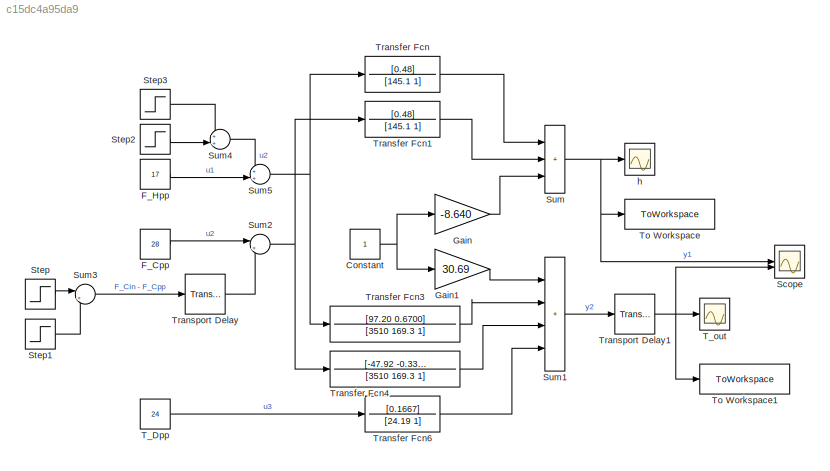
MODEL slx_c15dc4a95da9
KIND model
CONFIG AbsTol = auto
CONFIG EnableMultiTasking = off
CONFIG FixedStep = 0.1
CONFIG MaxStep = auto
CONFIG MinStep = auto
CONFIG RelTol = 1e-3
CONFIG SampleTimeConstraint = Unconstrained
CONFIG SolverName = ode4
CONFIG StartTime = 0.0
CONFIG StopTime = 5000.0
BLOCK [Constant] Constant
BLOCK [Constant] F_Cpp
  Value = 28
BLOCK [Constant] F_Hpp
  Value = 17
BLOCK [Gain] Gain
  Gain = -8.640
BLOCK [Gain] Gain1
  Gain = 30.69
BLOCK [Scope] Scope
  Floating = off
  NumInputPorts = 2
  ScopeSpecificationString = Simulink.scopes.TimeScopeBlockCfg('CurrentConfiguration', extmgr.ConfigurationSet(extmgr.Configuration('Core','General UI',true),extmgr.Configuration('Core','Source UI',true),extmgr.Configuration('Sources','WiredSimulink',true,'DataLoggingVariableName','ScopeData2'),extmgr.Configuration('Visuals','Time Domain',true,'SerializedDisplays',{struct('MinYLimReal','-14.46677','MaxYLimReal','43.80096','YL...<+1415ch>
BLOCK [Step] Step
  After = 2.8
  SampleTime = 0
  Time = 2000
BLOCK [Step] Step1
  After = -5.6
  SampleTime = 0
  Time = 2500
BLOCK [Step] Step2
  After = -3.4
  SampleTime = 0
  Time = 1500
BLOCK [Step] Step3
  After = 1.7
  SampleTime = 0
  Time = 1000
BLOCK [Sum] Sum
  IconShape = rectangular
  Inputs = +++
BLOCK [Sum] Sum1
  IconShape = rectangular
  Inputs = ++++
BLOCK [Sum] Sum2
  Inputs = |++
BLOCK [Sum] Sum3
  Inputs = |++
BLOCK [Sum] Sum4
  Inputs = ++|
BLOCK [Sum] Sum5
  Inputs = ++|
BLOCK [Constant] T_Dpp
  Value = 24
BLOCK [Scope] T_out
  Floating = off
  NumInputPorts = 1
  ScopeSpecificationString = Simulink.scopes.TimeScopeBlockCfg('CurrentConfiguration', extmgr.ConfigurationSet(extmgr.Configuration('Core','General UI',true),extmgr.Configuration('Core','Source UI',true),extmgr.Configuration('Sources','WiredSimulink',true),extmgr.Configuration('Visuals','Time Domain',true,'SerializedDisplays',{struct('MinYLimReal','-4.74677','MaxYLimReal','42.72096','YLabelReal','','MinYLimMag','0.00000','Max...<+1741ch>
BLOCK [ToWorkspace] To Workspace
  FixptAsFi = on
  MaxDataPoints = inf
  SampleTime = -1
  SaveFormat = Timeseries
  VariableName = h
BLOCK [ToWorkspace] To Workspace1
  FixptAsFi = on
  MaxDataPoints = inf
  SampleTime = -1
  SaveFormat = Timeseries
  VariableName = T_out
BLOCK [TransferFcn] Transfer Fcn
  Denominator = [145.1 1]
  Numerator = [0.48]
BLOCK [TransferFcn] Transfer Fcn1
  Denominator = [145.1 1]
  Numerator = [0.48]
BLOCK [TransferFcn] Transfer Fcn3
  Denominator = [3510 169.3 1]
  Numerator = [97.20 0.6700]
BLOCK [TransferFcn] Transfer Fcn4
  Denominator = [3510 169.3 1]
  Numerator = [-47.92 -0.3302]
BLOCK [TransferFcn] Transfer Fcn6
  Denominator = [24.19 1]
  Numerator = [0.1667]
BLOCK [TransportDelay] Transport Delay
  DelayTime = 90
BLOCK [TransportDelay] Transport Delay1
  DelayTime = 40
BLOCK [Scope] h
  Floating = off
  NumInputPorts = 1
  ScopeSpecificationString = Simulink.scopes.TimeScopeBlockCfg('CurrentConfiguration', extmgr.ConfigurationSet(extmgr.Configuration('Core','General UI',true),extmgr.Configuration('Core','Source UI',true),extmgr.Configuration('Sources','WiredSimulink',true,'DataLoggingVariableName','ScopeData1'),extmgr.Configuration('Visuals','Time Domain',true,'SerializedDisplays',{struct('MinYLimReal','-11.43866','MaxYLimReal','16.54793','YL...<+1721ch>
NET Constant:1 -> Gain1:1, Gain:1
LINE F_Cpp:1 -> Sum2:1
LINE F_Hpp:1 -> Sum5:2
LINE Gain1:1 -> Sum1:1
LINE Gain:1 -> Sum:3
LINE Step1:1 -> Sum3:2
LINE Step2:1 -> Sum4:2
LINE Step3:1 -> Sum4:1
LINE Step:1 -> Sum3:1
LINE Sum1:1 -> Transport Delay1:1
NET Sum2:1 -> Transfer Fcn1:1, Transfer Fcn4:1
LINE Sum3:1 -> Transport Delay:1
LINE Sum4:1 -> Sum5:1
NET Sum5:1 -> Transfer Fcn3:1, Transfer Fcn:1
NET Sum:1 -> Scope:1, To Workspace:1, h:1
LINE T_Dpp:1 -> Transfer Fcn6:1
LINE Transfer Fcn1:1 -> Sum:2
LINE Transfer Fcn3:1 -> Sum1:2
LINE Transfer Fcn4:1 -> Sum1:3
LINE Transfer Fcn6:1 -> Sum1:4
LINE Transfer Fcn:1 -> Sum:1
NET Transport Delay1:1 -> Scope:2, T_out:1, To Workspace1:1
LINE Transport Delay:1 -> Sum2:2
note: NET lines group one-source signal fan-out (src -> all destinations, sorted); 1:1 wires keep LINE
